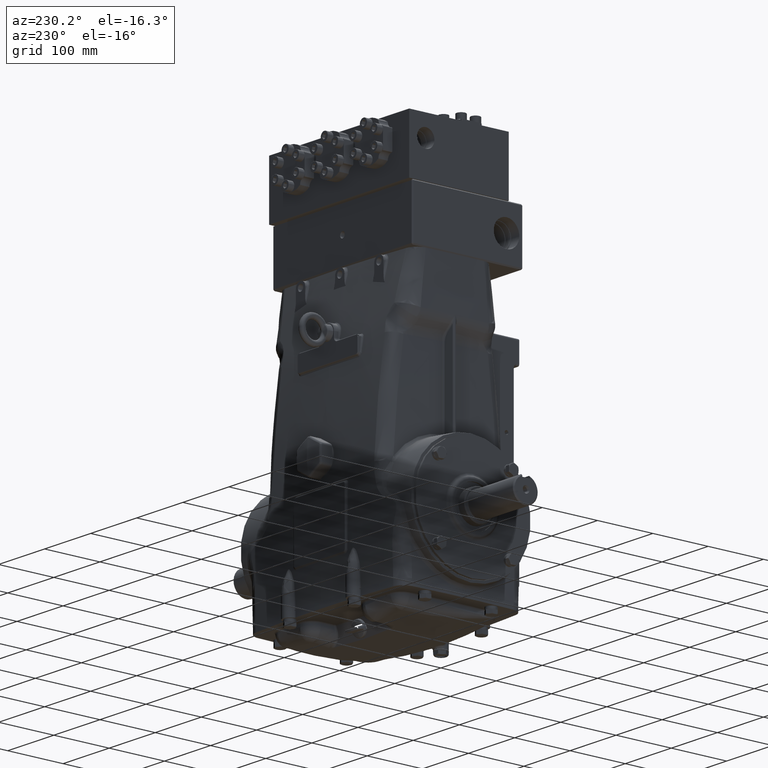
[diagram: clean part render]
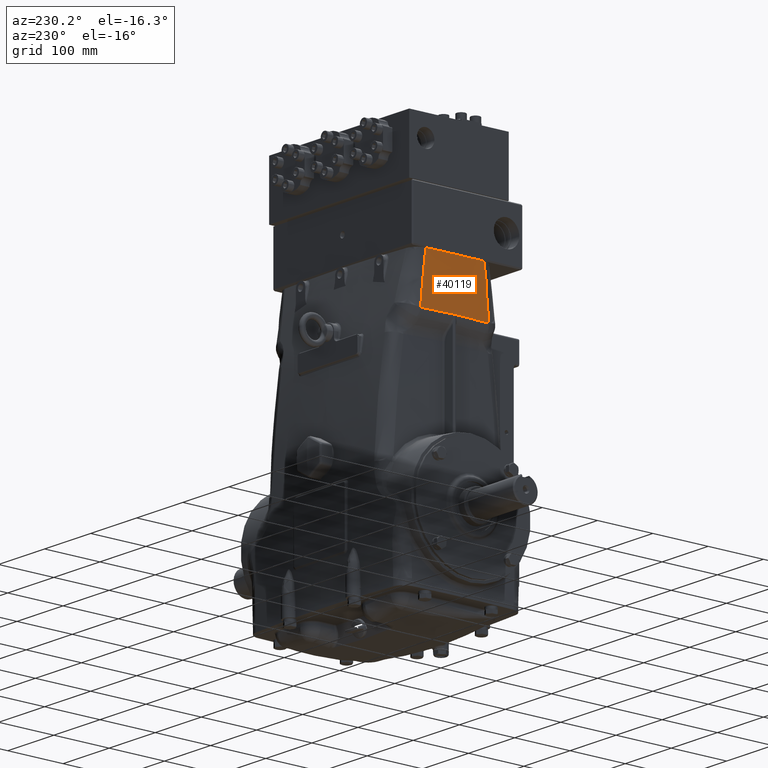
[diagram: same view with one face highlighted and labeled with its STEP entity id]
A machine part, auxiliary view. The second image highlights one B-rep face of the part: STEP entity #40119.
In plain terms, the highlighted cylindrical surface (partial cylindrical patch) has radius 1800 mm, axis along (-0, -0, 1).
Its self-contained STEP definition (entity closure, byte-faithful):
#62 = CARTESIAN_POINT ( 'NONE',  ( -5.914849519459009386, 2.062923769285555764, 14.76377952755905376 ) ) ;
#143 = CARTESIAN_POINT ( 'NONE',  ( -5.907935454055682989, -2.288042336988228787, 12.60076519160816311 ) ) ;
#460 = CARTESIAN_POINT ( 'NONE',  ( -5.905613202200761691, 2.358834284329041076, 11.74368165415275733 ) ) ;
#540 = CARTESIAN_POINT ( 'NONE',  ( -5.912393169960964201, -2.145610620489698750, 14.33355831382751155 ) ) ;
#559 = CARTESIAN_POINT ( 'NONE',  ( -5.914850108854505351, -2.062903530685586961, 14.76377952755905376 ) ) ;
#806 = CARTESIAN_POINT ( 'NONE',  ( -5.905145041411413054, 2.372849602808741132, 11.29664845096411518 ) ) ;
#868 = CARTESIAN_POINT ( 'NONE',  ( -5.908673938971610085, 2.265066120374979342, 13.03264317263259819 ) ) ;
#942 = CARTESIAN_POINT ( 'NONE',  ( -5.908002582631886490, -2.285966615022957171, 12.63956380070080954 ) ) ;
#1267 = CARTESIAN_POINT ( 'NONE',  ( -5.908677572512333498, 2.264952495141791200, 13.03477871201685723 ) ) ;
#1669 = CARTESIAN_POINT ( 'NONE',  ( -5.905672257207958076, 2.357060701444123385, 11.75828390509639831 ) ) ;
#2064 = CARTESIAN_POINT ( 'NONE',  ( -5.907925971269326837, 2.288335852937914972, 12.59596694199654721 ) ) ;
#2120 = CARTESIAN_POINT ( 'NONE',  ( -5.905145041411413054, 2.372849602808741132, 11.29664845096411518 ) ) ;
#3972 = CARTESIAN_POINT ( 'NONE',  ( -5.905528225752234128, -2.361384348573253522, 11.72284042517351743 ) ) ;
#4222 = B_SPLINE_CURVE_WITH_KNOTS ( 'NONE', 3,
 ( #35867, #66393, #73444, #35462 ),
 .UNSPECIFIED., .F., .F.,
 ( 4, 4 ),
 ( 0.000000000000000000, 1.000000000000000000 ),
 .UNSPECIFIED. ) ;
#4790 = CARTESIAN_POINT ( 'NONE',  ( -5.908572489952081064, -2.268236569756057364, 12.97263188438320647 ) ) ;
#5031 = CARTESIAN_POINT ( 'NONE',  ( -5.912946418877834454, 2.127280557214457968, 14.44140605342365902 ) ) ;
#6267 = CARTESIAN_POINT ( 'NONE',  ( -5.912407176762159544, 2.145148159625524631, 14.33655159732869144 ) ) ;
#6344 = CARTESIAN_POINT ( 'NONE',  ( -5.907385859755327928, -2.305001683636797249, 12.32399783327778309 ) ) ;
#6361 = CIRCLE ( 'NONE', #16908, 70.86614173228348079 ) ;
#6672 = CARTESIAN_POINT ( 'NONE',  ( -5.907925995699470967, 2.288335096773560728, 12.59598016377677077 ) ) ;
#6716 = EDGE_CURVE ( 'NONE', #65902, #25584, #4222, .T. ) ;
#6752 = CARTESIAN_POINT ( 'NONE',  ( -5.908673839083826707, -2.265069243921657538, 13.03219826566367345 ) ) ;
#7066 = CARTESIAN_POINT ( 'NONE',  ( -5.908673567012193040, 2.265077751738842515, 13.03242445659455662 ) ) ;
#7146 = CARTESIAN_POINT ( 'NONE',  ( -5.910358512039800338, -2.211763761638367409, 13.80513947154520338 ) ) ;
#7474 = CARTESIAN_POINT ( 'NONE',  ( -5.907932892053354479, 2.288121631570745773, 12.59986493567412857 ) ) ;
#7873 = CARTESIAN_POINT ( 'NONE',  ( -5.907946300177029819, 2.287706566398291397, 12.60754454059181207 ) ) ;
#8272 = CARTESIAN_POINT ( 'NONE',  ( -5.908690296882330273, 2.264554550061988802, 13.04224164656727680 ) ) ;
#8406 =( BOUNDED_CURVE ( )  B_SPLINE_CURVE ( 3, ( #59066, #52867, #16151, #27732 ),
 .UNSPECIFIED., .F., .T. ) 
 B_SPLINE_CURVE_WITH_KNOTS ( ( 4, 4 ),
 ( 6.249695502958979354, 6.283185307179586232 ),
 .UNSPECIFIED. ) 
 CURVE ( )  GEOMETRIC_REPRESENTATION_ITEM ( )  RATIONAL_B_SPLINE_CURVE ( ( 1.000000000000000000, 0.9999065382682942316, 0.9999065382682942316, 1.000000000000000000 ) ) 
 REPRESENTATION_ITEM ( '' )  );
#9340 = B_SPLINE_CURVE_WITH_KNOTS ( 'NONE', 3,
 ( #50362, #63944, #76378, #806 ),
 .UNSPECIFIED., .F., .F.,
 ( 4, 4 ),
 ( 0.000000000000000000, 1.000000000000000000 ),
 .UNSPECIFIED. ) ;
#10987 = CARTESIAN_POINT ( 'NONE',  ( -5.906938846201674309, -2.318688163923551926, 12.14411392551928159 ) ) ;
#11232 = CARTESIAN_POINT ( 'NONE',  ( -5.910719505151603492, 2.200169575731908633, 13.92062736803391942 ) ) ;
#12537 = CARTESIAN_POINT ( 'NONE',  ( -5.907924465698684457, -2.288382453418289941, 12.59476612252230154 ) ) ;
#12859 = CARTESIAN_POINT ( 'NONE',  ( -5.907925908589608532, 2.288337793016503863, 12.59593263261130502 ) ) ;
#12942 = CARTESIAN_POINT ( 'NONE',  ( -5.911320192420449260, -2.180781614502945498, 14.09184732293710773 ) ) ;
#13270 = CARTESIAN_POINT ( 'NONE',  ( -5.907542385340669888, 2.300186964994692662, 12.39651488313214323 ) ) ;
#13347 = CARTESIAN_POINT ( 'NONE',  ( -5.912401270045752000, -2.145343192925556863, 14.33522066649845783 ) ) ;
#13739 = CARTESIAN_POINT ( 'NONE',  ( -5.908660965256409270, -2.265471784821569301, 13.02462738432079981 ) ) ;
#13809 = ORIENTED_EDGE ( 'NONE', *, *, #31128, .T. ) ;
#13833 = CARTESIAN_POINT ( 'NONE',  ( 64.92125984251968873, 0.000000000000000000, 10.03937007874015563 ) ) ;
#13884 = CARTESIAN_POINT ( 'NONE',  ( -5.944881889763780514, -0.7911277460980798981, 11.33801195392740446 ) ) ;
#14066 = CARTESIAN_POINT ( 'NONE',  ( -5.906984198454624746, 2.317302330869617233, 12.16157686259979265 ) ) ;
#14477 = CARTESIAN_POINT ( 'NONE',  ( -5.907926379979780762, 2.288323202396558287, 12.59619183929495279 ) ) ;
#16151 = CARTESIAN_POINT ( 'NONE',  ( -5.944881889763779625, 0.7911347092868183939, 11.33801195392740269 ) ) ;
#16792 = CARTESIAN_POINT ( 'NONE',  ( -5.905546977220835991, -2.360821836220552417, 11.72735800090198133 ) ) ;
#16908 = AXIS2_PLACEMENT_3D ( 'NONE', #26277, #51426, #51823 ) ;
#17031 = CARTESIAN_POINT ( 'NONE',  ( -5.910311584975073806, 2.213292162712717115, 13.79568169888957563 ) ) ;
#17215 = CARTESIAN_POINT ( 'NONE',  ( -5.906982066683062804, -2.317367487503521950, 12.16048425829134949 ) ) ;
#17459 = CARTESIAN_POINT ( 'NONE',  ( -5.912527729218598260, 2.141164361714797071, 14.36090416438256234 ) ) ;
#17628 = CARTESIAN_POINT ( 'NONE',  ( -5.911844968358781927, -2.163643305959773500, 14.21576619181496248 ) ) ;
#17869 = CARTESIAN_POINT ( 'NONE',  ( -5.912074343975505464, 2.156137704011513279, 14.26832902117558888 ) ) ;
#18288 = CARTESIAN_POINT ( 'NONE',  ( -5.910691973858821058, 2.201055658973258833, 13.91227466675942814 ) ) ;
#19085 = CARTESIAN_POINT ( 'NONE',  ( -5.908673636214894387, 2.265075587733624385, 13.03246514808705747 ) ) ;
#19163 = CARTESIAN_POINT ( 'NONE',  ( -5.912385478397920835, -2.145864539222887668, 14.33197820121930910 ) ) ;
#19486 = CARTESIAN_POINT ( 'NONE',  ( -5.904359374784609926, 2.396358114100670456, 11.47133474665070274 ) ) ;
#19564 = CARTESIAN_POINT ( 'NONE',  ( -5.907909924821609593, -2.288832481220072879, 12.58684947114182506 ) ) ;
#19895 = CARTESIAN_POINT ( 'NONE',  ( -5.907928574215944195, 2.288255284748716978, 12.59741784540901932 ) ) ;
#19975 = CARTESIAN_POINT ( 'NONE',  ( -5.906893569967431645, -2.320070968450516080, 12.12721524649918337 ) ) ;
#20282 = CARTESIAN_POINT ( 'NONE',  ( -5.907000699998951276, 2.316797915951817721, 12.16789749022835032 ) ) ;
#20362 = CARTESIAN_POINT ( 'NONE',  ( -5.914850108854505351, -2.062903530685586961, 14.76377952755905376 ) ) ;
#22577 = CARTESIAN_POINT ( 'NONE',  ( -5.905333103806380102, -2.367230992023289904, 11.67729037283493554 ) ) ;
#23393 = CARTESIAN_POINT ( 'NONE',  ( -5.907146162960594360, -2.312351928082398533, 12.22312337869104049 ) ) ;
#23812 = CARTESIAN_POINT ( 'NONE',  ( -5.908673056883660735, -2.265093703616466669, 13.03173823051254843 ) ) ;
#24045 = CARTESIAN_POINT ( 'NONE',  ( -5.910668487044859809, 2.201811330815916623, 13.90510261223999322 ) ) ;
#24446 = CARTESIAN_POINT ( 'NONE',  ( -5.909225665884736856, 2.247756914242586390, 13.33513139633698152 ) ) ;
#24453 = VERTEX_POINT ( 'NONE', #559 ) ;
#24860 = CARTESIAN_POINT ( 'NONE',  ( -5.910887622280017517, 2.194752194930855271, 13.97041162654521962 ) ) ;
#25276 = CARTESIAN_POINT ( 'NONE',  ( -5.913229139133507672, 2.117843687238893935, 14.49218836720061887 ) ) ;
#25353 = CARTESIAN_POINT ( 'NONE',  ( -5.908672357009643328, -2.265115588781693390, 13.03132661716527174 ) ) ;
#25584 = VERTEX_POINT ( 'NONE', #48118 ) ;
#25676 = CARTESIAN_POINT ( 'NONE',  ( -5.906448200662091530, 2.333647360579240715, 11.97100916173336671 ) ) ;
#25757 = CARTESIAN_POINT ( 'NONE',  ( -5.910588093824340916, -2.204396247899172323, 13.87997393401313140 ) ) ;
#25846 = DIRECTION ( 'NONE',  ( 1.000000000000000000, 0.000000000000000000, 0.000000000000000000 ) ) ;
#26081 = CARTESIAN_POINT ( 'NONE',  ( -5.907124578004150806, 2.313008229074265287, 12.21653243246279352 ) ) ;
#26158 = CARTESIAN_POINT ( 'NONE',  ( -5.910664206654299591, -2.201949026004639265, 13.90360742140967787 ) ) ;
#26277 = CARTESIAN_POINT ( 'NONE',  ( 64.92125984251968873, 0.000000000000000000, 14.76377952755905376 ) ) ;
#26425 = ORIENTED_EDGE ( 'NONE', *, *, #75958, .T. ) ;
#27732 = CARTESIAN_POINT ( 'NONE',  ( -5.944881889763789395, 0.000000000000000000, 11.33801195392741334 ) ) ;
#29587 = CARTESIAN_POINT ( 'NONE',  ( -5.907859966048493838, -2.290378084995074115, 12.55991400771519473 ) ) ;
#30008 = CARTESIAN_POINT ( 'NONE',  ( -5.908648036470469656, -2.265875982219262230, 13.01702548429508077 ) ) ;
#30255 = CARTESIAN_POINT ( 'NONE',  ( -5.911119552194555204, 2.187260002439114004, 14.03590544019855457 ) ) ;
#30630 = CARTESIAN_POINT ( 'NONE',  ( -5.903375805935151099, 2.425076266536521086, 11.30089893811133983 ) ) ;
#31062 = CARTESIAN_POINT ( 'NONE',  ( -5.910666534261126870, 2.201874150668091890, 13.90450443823717919 ) ) ;
#31128 = EDGE_CURVE ( 'NONE', #36854, #78684, #56844, .T. ) ;
#31465 = CARTESIAN_POINT ( 'NONE',  ( -5.911609795965371283, 2.171353261600236007, 14.16385810397932410 ) ) ;
#31545 = CARTESIAN_POINT ( 'NONE',  ( -5.907925948688254714, -2.288336551877323544, 12.59557548183328102 ) ) ;
#31876 = CARTESIAN_POINT ( 'NONE',  ( -5.906991816552033647, 2.317069474539982465, 12.16449026980165726 ) ) ;
#31906 = ORIENTED_EDGE ( 'NONE', *, *, #69898, .T. ) ;
#31952 = CARTESIAN_POINT ( 'NONE',  ( -5.910511285549894467, -2.206863464533414199, 13.85553525853279133 ) ) ;
#32146 = CARTESIAN_POINT ( 'NONE',  ( -5.914849519459009386, 2.062923769285555764, 14.76377952755905376 ) ) ;
#32269 = CARTESIAN_POINT ( 'NONE',  ( -5.906016381522832148, 2.346702566661738487, 11.84755615944344953 ) ) ;
#32347 = CARTESIAN_POINT ( 'NONE',  ( -5.910645883728444794, -2.202538368117034739, 13.89797078274249387 ) ) ;
#32669 = CARTESIAN_POINT ( 'NONE',  ( -5.907926101290532195, 2.288331828485016040, 12.59603828090800448 ) ) ;
#32849 = DIRECTION ( 'NONE',  ( -0.000000000000000000, -0.000000000000000000, 1.000000000000000000 ) ) ;
#33080 = CARTESIAN_POINT ( 'NONE',  ( -5.905557928655715827, 2.360493260507960933, 11.73019312247536305 ) ) ;
#33474 = CARTESIAN_POINT ( 'NONE',  ( -5.907925864761807588, 2.288339149584246890, 12.59590867641229117 ) ) ;
#35462 = CARTESIAN_POINT ( 'NONE',  ( -5.903376586306757545, -2.425053475419854276, 11.30089932007131459 ) ) ;
#35867 = CARTESIAN_POINT ( 'NONE',  ( -5.905145740766999829, -2.372828727882712929, 11.29664917894829834 ) ) ;
#36178 = CARTESIAN_POINT ( 'NONE',  ( -5.907926533142209280, -2.288318461630884482, 12.59589455035079375 ) ) ;
#36854 = VERTEX_POINT ( 'NONE', #32146 ) ;
#37249 = CARTESIAN_POINT ( 'NONE',  ( -5.912405410717039622, 2.145206474836610866, 14.33619000024514634 ) ) ;
#37643 = CARTESIAN_POINT ( 'NONE',  ( -5.912433373583989571, 2.144282988386367883, 14.34189929391718721 ) ) ;
#37724 = CARTESIAN_POINT ( 'NONE',  ( -5.912367555594764568, -2.146456113003074595, 14.32828832679644826 ) ) ;
#37818 = EDGE_CURVE ( 'NONE', #24453, #36854, #6361, .T. ) ;
#38057 = CARTESIAN_POINT ( 'NONE',  ( -5.907018452873892933, 2.316255145442352337, 12.17473861268919322 ) ) ;
#38135 = CARTESIAN_POINT ( 'NONE',  ( -5.912260696901864065, -2.149980264331264657, 14.30606662015562591 ) ) ;
#38451 = CARTESIAN_POINT ( 'NONE',  ( -5.905078663283149787, 2.374872883555778191, 11.61408808050660291 ) ) ;
#38522 = CARTESIAN_POINT ( 'NONE',  ( -5.906210724278896151, -2.340843054100693710, 11.89896932830630938 ) ) ;
#38839 = CARTESIAN_POINT ( 'NONE',  ( -5.905583491758536141, 2.359726135792812762, 11.73641014919317271 ) ) ;
#38921 = CARTESIAN_POINT ( 'NONE',  ( -5.906972499305956248, -2.317659890735875194, 12.15684003220991016 ) ) ;
#39242 = CARTESIAN_POINT ( 'NONE',  ( -5.905788906318869103, 2.353554015934743227, 11.78772537108157081 ) ) ;
#39650 = CARTESIAN_POINT ( 'NONE',  ( -5.907774054123752450, 2.293038025342771569, 12.51302298081366082 ) ) ;
#40119 = ADVANCED_FACE ( 'NONE', ( #56776 ), #50581, .T. ) ;
#40733 = CARTESIAN_POINT ( 'NONE',  ( -5.903868404421727334, -2.410696825058905368, 11.38610251722253608 ) ) ;
#41945 = CARTESIAN_POINT ( 'NONE',  ( -5.905550704305387200, -2.360710017635931912, 11.72825889983235648 ) ) ;
#42031 = AXIS2_PLACEMENT_3D ( 'NONE', #13833, #32849, #25846 ) ;
#42365 = CARTESIAN_POINT ( 'NONE',  ( -5.907922389271537789, -2.288446721722634525, 12.59363350021778238 ) ) ;
#42592 = CARTESIAN_POINT ( 'NONE',  ( -5.912464364493356328, 2.143259104953934013, 14.34818444621476452 ) ) ;
#42775 = CARTESIAN_POINT ( 'NONE',  ( -5.910626602959386133, -2.203158372550598543, 13.89200346724993373 ) ) ;
#43014 = CARTESIAN_POINT ( 'NONE',  ( -5.910678260647441284, 2.201496899145066966, 13.90809238845904972 ) ) ;
#43065 = CARTESIAN_POINT ( 'NONE',  ( -5.944881889763789395, 0.000000000000000000, 11.33801195392741334 ) ) ;
#44225 = CARTESIAN_POINT ( 'NONE',  ( -5.908809579912570165, 2.260821146657628233, 13.11103706078430342 ) ) ;
#44304 = CARTESIAN_POINT ( 'NONE',  ( -5.909465837348431450, -2.240209742213045807, 13.46024854086546263 ) ) ;
#44712 = CARTESIAN_POINT ( 'NONE',  ( -5.908622468202515243, -2.266675148888330771, 13.00199565570684790 ) ) ;
#45070 = ORIENTED_EDGE ( 'NONE', *, *, #6716, .T. ) ;
#45109 = CARTESIAN_POINT ( 'NONE',  ( -5.906978082837019528, -2.317489247722475554, 12.15896539144380561 ) ) ;
#45427 = CARTESIAN_POINT ( 'NONE',  ( -5.907927011945045770, 2.288303641488663498, 12.59654247832490093 ) ) ;
#45830 = CARTESIAN_POINT ( 'NONE',  ( -5.908681812763847851, 2.264819891135029462, 13.03726833530383367 ) ) ;
#47723 = CARTESIAN_POINT ( 'NONE',  ( -5.905447124792739366, -2.363815928739164018, 11.70360253815453433 ) ) ;
#48118 = CARTESIAN_POINT ( 'NONE',  ( -5.903376586306757545, -2.425053475419854276, 11.30089932007131459 ) ) ;
#48133 = CARTESIAN_POINT ( 'NONE',  ( -5.903376586306757545, -2.425053475419854276, 11.30089932007131459 ) ) ;
#48547 = CARTESIAN_POINT ( 'NONE',  ( -5.906801625286711044, -2.322876944094643292, 12.09365604811865680 ) ) ;
#48963 = CARTESIAN_POINT ( 'NONE',  ( -5.910655530657336065, -2.202228099210286949, 13.90094257770731190 ) ) ;
#49557 = EDGE_CURVE ( 'NONE', #57898, #65902, #81598, .T. ) ;
#49603 = CARTESIAN_POINT ( 'NONE',  ( -5.914316301299402667, 2.081233267886914540, 14.67785554985681529 ) ) ;
#50362 = CARTESIAN_POINT ( 'NONE',  ( -5.903375805935151099, 2.425076266536521086, 11.30089893811133983 ) ) ;
#50420 = CARTESIAN_POINT ( 'NONE',  ( -5.907925882226328085, 2.288338609018522263, 12.59591822003274331 ) ) ;
#50494 = CARTESIAN_POINT ( 'NONE',  ( -5.910056361448352114, -2.221427811899505222, 13.69827415346227184 ) ) ;
#50581 = CYLINDRICAL_SURFACE ( 'NONE', #42031, 70.86614173228348079 ) ;
#50819 = CARTESIAN_POINT ( 'NONE',  ( -5.905555514685309149, 2.360565690588433352, 11.72960788464305715 ) ) ;
#50901 = CARTESIAN_POINT ( 'NONE',  ( -5.912398299971339810, -2.145441255309102679, 14.33461144175644542 ) ) ;
#51040 = CARTESIAN_POINT ( 'NONE',  ( -5.905145740766999829, -2.372828727882712929, 11.29664917894829834 ) ) ;
#51302 = CARTESIAN_POINT ( 'NONE',  ( -5.908673523573869879, -2.265079110073227486, 13.03201270413225998 ) ) ;
#51426 = DIRECTION ( 'NONE',  ( -0.000000000000000000, -0.000000000000000000, -1.000000000000000000 ) ) ;
#51629 = CARTESIAN_POINT ( 'NONE',  ( -5.907992197049621197, 2.286285400491313347, 12.63404544797705498 ) ) ;
#51823 = DIRECTION ( 'NONE',  ( 1.000000000000000000, 0.000000000000000000, 0.000000000000000000 ) ) ;
#52017 = CARTESIAN_POINT ( 'NONE',  ( -5.907053902575530202, 2.315170991092177388, 12.18852758404067060 ) ) ;
#52236 = CARTESIAN_POINT ( 'NONE',  ( -5.944881889763789395, 0.000000000000000000, 11.33801195392741334 ) ) ;
#52867 = CARTESIAN_POINT ( 'NONE',  ( -5.931635035572393910, 1.582158507343740528, 11.32422283085098513 ) ) ;
#53304 = CARTESIAN_POINT ( 'NONE',  ( -5.912957260764703626, -2.126985211393721098, 14.44919566182865189 ) ) ;
#54718 = CARTESIAN_POINT ( 'NONE',  ( -5.908477174946255239, -2.271211761875668866, 12.91668788514720312 ) ) ;
#55135 = CARTESIAN_POINT ( 'NONE',  ( -5.908667465795435447, -2.265268532606619090, 13.02845008076655553 ) ) ;
#55686 = VERTEX_POINT ( 'NONE', #2120 ) ;
#56678 = CARTESIAN_POINT ( 'NONE',  ( -5.907658511919636979, -2.296601552537814950, 12.45538260004322417 ) ) ;
#56776 = FACE_OUTER_BOUND ( 'NONE', #76622, .T. ) ;
#56844 = B_SPLINE_CURVE_WITH_KNOTS ( 'NONE', 3,
 ( #62, #49603, #61581, #25276, #5031, #74009, #17459, #42592, #37643, #68606, #62808, #6267, #37249, #17869, #31465, #30255, #24860, #67765, #11232, #18288, #43014, #81020, #24045, #31062, #68185, #17031, #62005, #24446, #63605, #44225, #70612, #75635, #8272, #45830, #1267, #58618, #71021, #868, #19085, #7066, #69408, #64822, #69815, #51629, #7873, #7474, #19895, #45427, #14477, #32669, #2064, #12859, #50420, #33474, #6672, #39650, #13270, #76835, #26081, #52017, #38057, #20282, #31876, #63218, #58211, #14066, #57008, #57808, #25676, #32269, #39242, #1669, #460, #38839, #64410, #76043, #33080, #50819, #38451, #19486, #57406 ),
 .UNSPECIFIED., .F., .F.,
 ( 4, 2, 1, 1, 1, 1, 1, 1, 2, 2, 1, 1, 1, 1, 1, 1, 1, 1, 2, 2, 1, 1, 1, 1, 1, 1, 1, 1, 1, 1, 1, 2, 2, 2, 1, 1, 1, 1, 1, 1, 1, 1, 1, 2, 2, 1, 1, 1, 1, 1, 1, 1, 1, 2, 2, 1, 1, 1, 1, 1, 1, 1, 2, 2, 4 ),
 ( 0.000000000000000000, 0.06250000000417306467, 0.09375000000626051988, 0.1093750000073052536, 0.1171875000078276413, 0.1210937500080877111, 0.1230468750082188978, 0.1240234375082833046, 0.1245117187583155011, 0.1250000000083477114, 0.1875000000124950605, 0.2187500000145687351, 0.2343750000156064606, 0.2421875000161244351, 0.2460937500163843106, 0.2480468750165142622, 0.2490234375165783498, 0.2495117187666103797, 0.2497558593916264225, 0.2500000000166424097, 0.3750000000251201837, 0.4375000000293599589, 0.4687500000314789861, 0.4843750000325385274, 0.4921875000330675487, 0.4960937500333313377, 0.4980468750334631767, 0.4990234375335290684, 0.4995117187835613204, 0.4997558594085774186, 0.4998779297210862449, 0.4999389648773399641, 0.5000000000335935724, 0.5625000000370895537, 0.5937500000388373778, 0.6093750000397131217, 0.6171875000401509936, 0.6210937500403699296, 0.6230468750404793976, 0.6240234375405242506, 0.6245117187905466771, 0.6247558594155705469, 0.6248779297280825373, 0.6249389648843248768, 0.6250000000405671052, 0.6875000000336500827, 0.7187500000301906278, 0.7343750000284609003, 0.7421875000275949263, 0.7460937500271619394, 0.7480468750269454459, 0.7490234375268360889, 0.7495117187767814659, 0.7497558594017541544, 0.7500000000267267319, 0.8125000000201291206, 0.8437500000168303149, 0.8593750000151799684, 0.8671875000143547396, 0.8710937500139421807, 0.8730468750137347911, 0.8740234375136310963, 0.8745117187635792488, 0.8750000000135274014, 1.000000000000000000 ),
 .UNSPECIFIED. ) ;
#57008 = CARTESIAN_POINT ( 'NONE',  ( -5.906983724185893792, 2.317316826873552227, 12.16139571799301500 ) ) ;
#57009 = EDGE_CURVE ( 'NONE', #55686, #57898, #8406, .T. ) ;
#57086 = CARTESIAN_POINT ( 'NONE',  ( -5.912331806775213749, -2.147635647510576007, 14.32089679793592296 ) ) ;
#57221 = CARTESIAN_POINT ( 'NONE',  ( -5.931635268734507527, -1.582144583894554923, 11.32422307355774826 ) ) ;
#57406 = CARTESIAN_POINT ( 'NONE',  ( -5.903375805935151099, 2.425076266536521086, 11.30089893811133983 ) ) ;
#57486 = CARTESIAN_POINT ( 'NONE',  ( -5.907893289852319541, -2.289347226339031316, 12.57783531171034141 ) ) ;
#57808 = CARTESIAN_POINT ( 'NONE',  ( -5.906779215138526773, 2.323567532111388001, 12.08332560752385731 ) ) ;
#57898 = VERTEX_POINT ( 'NONE', #43065 ) ;
#58211 = CARTESIAN_POINT ( 'NONE',  ( -5.906985468353179058, 2.317263516150661840, 12.16206202018411453 ) ) ;
#58618 = CARTESIAN_POINT ( 'NONE',  ( -5.908675452838605402, 2.265018780512672247, 13.03353315845955862 ) ) ;
#59066 = CARTESIAN_POINT ( 'NONE',  ( -5.905145041411413054, 2.372849602808741132, 11.29664845096411518 ) ) ;
#59214 = ORIENTED_EDGE ( 'NONE', *, *, #57009, .T. ) ;
#59697 = CARTESIAN_POINT ( 'NONE',  ( -5.904293807899241742, -2.398147131624760231, 11.46439270431054247 ) ) ;
#60523 = CARTESIAN_POINT ( 'NONE',  ( -5.904836973050063165, -2.382033327837833170, 11.57145764498315543 ) ) ;
#61343 = CARTESIAN_POINT ( 'NONE',  ( -5.906612150607194245, -2.328650361194879448, 12.02749028999629211 ) ) ;
#61581 = CARTESIAN_POINT ( 'NONE',  ( -5.913842805634069499, 2.097251884575155323, 14.59921726255442209 ) ) ;
#62005 = CARTESIAN_POINT ( 'NONE',  ( -5.909797359077495926, 2.229702078746513383, 13.60556097325805069 ) ) ;
#62808 = CARTESIAN_POINT ( 'NONE',  ( -5.912411521591919517, 2.145004686772696623, 14.33744058256331222 ) ) ;
#62885 = CARTESIAN_POINT ( 'NONE',  ( -5.907926245270652466, -2.288327371963689849, 12.59573738454983882 ) ) ;
#63218 = CARTESIAN_POINT ( 'NONE',  ( -5.906987373075787140, 2.317205297167524325, 12.16278999478924128 ) ) ;
#63294 = CARTESIAN_POINT ( 'NONE',  ( -5.906983024356325274, -2.317338216854290867, 12.16084968098479635 ) ) ;
#63605 = CARTESIAN_POINT ( 'NONE',  ( -5.908947054855834935, 2.256511820642408406, 13.18776109195536606 ) ) ;
#63685 = CARTESIAN_POINT ( 'NONE',  ( -5.908189887958601894, -2.280153209043882967, 12.74866079386039353 ) ) ;
#63944 = CARTESIAN_POINT ( 'NONE',  ( -5.903959515862932328, 2.408036040008168843, 11.29745660387063744 ) ) ;
#64082 = CARTESIAN_POINT ( 'NONE',  ( -5.912120033135460417, -2.154611689339591685, 14.27621778435805311 ) ) ;
#64335 = CARTESIAN_POINT ( 'NONE',  ( -5.905145740766999829, -2.372828727882712929, 11.29664917894829834 ) ) ;
#64410 = CARTESIAN_POINT ( 'NONE',  ( -5.905568590761821390, 2.360173326528731685, 11.73278180184143693 ) ) ;
#64534 = ORIENTED_EDGE ( 'NONE', *, *, #49557, .T. ) ;
#64571 = ORIENTED_EDGE ( 'NONE', *, *, #37818, .T. ) ;
#64822 = CARTESIAN_POINT ( 'NONE',  ( -5.908251518864884311, 2.278240409770262431, 12.78495753448111749 ) ) ;
#65902 = VERTEX_POINT ( 'NONE', #64335 ) ;
#66393 = CARTESIAN_POINT ( 'NONE',  ( -5.904550180776596768, -2.390605558099901717, 11.29604071551443845 ) ) ;
#66709 = CARTESIAN_POINT ( 'NONE',  ( -5.905501611925175531, -2.362182521245813849, 11.71647505683106516 ) ) ;
#67126 = CARTESIAN_POINT ( 'NONE',  ( -5.905552285682732716, -2.360662572354068178, 11.72864148323970568 ) ) ;
#67528 = CARTESIAN_POINT ( 'NONE',  ( -5.907925503807152090, -2.288350321938684040, 12.59533264268797126 ) ) ;
#67765 = CARTESIAN_POINT ( 'NONE',  ( -5.910774986753275506, 2.198382997643469228, 13.93728534927780416 ) ) ;
#68185 = CARTESIAN_POINT ( 'NONE',  ( -5.910665271862801440, 2.201914760178965036, 13.90411753428069375 ) ) ;
#68606 = CARTESIAN_POINT ( 'NONE',  ( -5.912418051211069780, 2.144789058062345877, 14.33877539446498872 ) ) ;
#69078 = CARTESIAN_POINT ( 'NONE',  ( -5.906961310545741028, -2.318001807492295896, 12.15259303498678811 ) ) ;
#69408 = CARTESIAN_POINT ( 'NONE',  ( -5.908434182414926461, 2.272563384559500133, 12.89164449754916575 ) ) ;
#69484 = CARTESIAN_POINT ( 'NONE',  ( -5.910914856849399435, -2.193886037905765640, 13.98046140597031517 ) ) ;
#69815 = CARTESIAN_POINT ( 'NONE',  ( -5.908064203824373806, 2.284054053072834378, 12.67586056439279041 ) ) ;
#69892 = CARTESIAN_POINT ( 'NONE',  ( -5.910660355757156204, -2.202072898084340480, 13.90242550949435518 ) ) ;
#69898 = EDGE_CURVE ( 'NONE', #78684, #55686, #9340, .T. ) ;
#70292 = CARTESIAN_POINT ( 'NONE',  ( -5.907918235576282484, -2.288575279713105814, 12.59136992771605357 ) ) ;
#70612 = CARTESIAN_POINT ( 'NONE',  ( -5.908741302749783486, 2.262958777949713784, 13.07191532545369661 ) ) ;
#71021 = CARTESIAN_POINT ( 'NONE',  ( -5.908674393114756285, 2.265051919040012240, 13.03291019620245450 ) ) ;
#73347 = CARTESIAN_POINT ( 'NONE',  ( -5.905541375365363166, -2.360989895010109141, 11.72600538659578895 ) ) ;
#73444 = CARTESIAN_POINT ( 'NONE',  ( -5.903960270934229371, -2.408013827566592546, 11.29745724495016468 ) ) ;
#73767 = CARTESIAN_POINT ( 'NONE',  ( -5.907793102774810734, -2.292445275973542085, 12.52449945919616781 ) ) ;
#74009 = CARTESIAN_POINT ( 'NONE',  ( -5.912659975979523530, 2.136786969310013440, 14.38694125500877874 ) ) ;
#74172 = CARTESIAN_POINT ( 'NONE',  ( -5.910663802918763032, -2.201962013150760900, 13.90348354608459580 ) ) ;
#75635 = CARTESIAN_POINT ( 'NONE',  ( -5.908707279576093541, 2.264023335676851545, 13.05216452785212589 ) ) ;
#75714 = CARTESIAN_POINT ( 'NONE',  ( -5.910662424007406379, -2.202006369029120503, 13.90306041618265098 ) ) ;
#75958 = EDGE_CURVE ( 'NONE', #25584, #24453, #81520, .T. ) ;
#76043 = CARTESIAN_POINT ( 'NONE',  ( -5.905562194806917020, 2.360365250773306389, 11.73122838264670875 ) ) ;
#76120 = CARTESIAN_POINT ( 'NONE',  ( -5.908983937900786465, -2.255372266826038974, 13.21457805618659087 ) ) ;
#76378 = CARTESIAN_POINT ( 'NONE',  ( -5.904549452860863745, 2.390627128942514723, 11.29603995860295029 ) ) ;
#76516 = CARTESIAN_POINT ( 'NONE',  ( -5.908305174442163299, -2.276571549674029526, 12.81593406032033577 ) ) ;
#76622 = EDGE_LOOP ( 'NONE', ( #64571, #13809, #31906, #59214, #64534, #45070, #26425 ) ) ;
#76835 = CARTESIAN_POINT ( 'NONE',  ( -5.907265034704678008, 2.308704891830010375, 12.27424975218368886 ) ) ;
#77921 = CARTESIAN_POINT ( 'NONE',  ( -5.905827633517976238, -2.352401104028594148, 11.79534088323732277 ) ) ;
#78129 = CARTESIAN_POINT ( 'NONE',  ( -5.913783481561727839, -2.099529445113942572, 14.59190078789779577 ) ) ;
#78684 = VERTEX_POINT ( 'NONE', #30630 ) ;
#79149 = CARTESIAN_POINT ( 'NONE',  ( -5.905084801157298280, -2.374654109298677263, 11.62239753032961787 ) ) ;
#79963 = CARTESIAN_POINT ( 'NONE',  ( -5.906980473454533254, -2.317416182580672057, 12.15987665839169374 ) ) ;
#80375 = CARTESIAN_POINT ( 'NONE',  ( -5.908670725099357313, -2.265166618119822228, 13.03036686559766366 ) ) ;
#81020 = CARTESIAN_POINT ( 'NONE',  ( -5.910671417157693952, 2.201717068868905613, 13.90599976739307664 ) ) ;
#81520 = B_SPLINE_CURVE_WITH_KNOTS ( 'NONE', 3,
 ( #48133, #40733, #59697, #60523, #79149, #22577, #47723, #66709, #3972, #73347, #16792, #41945, #67126, #77921, #38522, #61343, #48547, #19975, #10987, #69078, #38921, #45109, #79963, #17215, #63294, #23393, #6344, #56678, #73767, #29587, #57486, #19564, #70292, #42365, #12537, #67528, #31545, #62885, #36178, #143, #942, #63685, #76516, #54718, #4790, #44712, #30008, #13739, #55135, #80375, #25353, #23812, #51302, #6752, #76120, #44304, #50494, #7146, #31952, #25757, #42775, #32347, #48963, #69892, #75714, #74172, #26158, #69484, #12942, #17628, #64082, #38135, #57086, #37724, #19163, #540, #50901, #13347, #53304, #78129, #20362 ),
 .UNSPECIFIED., .F., .F.,
 ( 4, 2, 1, 1, 1, 1, 1, 1, 2, 2, 1, 1, 1, 1, 1, 1, 1, 1, 2, 2, 1, 1, 1, 1, 1, 1, 1, 1, 1, 1, 2, 2, 2, 1, 1, 1, 1, 1, 1, 1, 1, 1, 2, 2, 1, 1, 1, 1, 1, 1, 1, 1, 1, 2, 2, 1, 1, 1, 1, 1, 1, 1, 2, 2, 4 ),
 ( 0.000000000000000000, 0.06249999999974054088, 0.09374999999961081132, 0.1093749999995448918, 0.1171874999995119321, 0.1210937499994966110, 0.1230468749994889366, 0.1240234374994839683, 0.1245117187494826222, 0.1249999999994812760, 0.1874999999991568966, 0.2187499999989946931, 0.2343749999989145072, 0.2421874999988735400, 0.2460937499988530286, 0.2480468749988427868, 0.2490234374988367916, 0.2495117187488337940, 0.2497558593738314348, 0.2499999999988290478, 0.3124999999979255483, 0.3437499999974728548, 0.3593749999972456477, 0.3671874999971328490, 0.3710937499970773379, 0.3730468749970504150, 0.3740234374970369258, 0.3745117187470302089, 0.3747558593720268227, 0.3748779296845251574, 0.3749389648407735476, 0.3749999999970218822, 0.4374999999959829355, 0.4687499999954634622, 0.4843749999952043916, 0.4921874999950742735, 0.4960937499950092144, 0.4980468749949771845, 0.4990234374949611973, 0.4995117187449537033, 0.4997558593699499285, 0.4998779296824485407, 0.4999389648386983742, 0.4999999999949481522, 0.6249999999963756769, 0.6874999999970894393, 0.7187499999974473752, 0.7343749999976263432, 0.7421874999977146059, 0.7460937499977587928, 0.7480468749977808862, 0.7490234374977919884, 0.7495117187477986498, 0.7497558593728007592, 0.7499999999978028686, 0.8124999999982414067, 0.8437499999984596766, 0.8593749999985688115, 0.8671874999986243227, 0.8710937499986530774, 0.8730468749986665111, 0.8740234374986742827, 0.8745117187486790566, 0.8749999999986839416, 1.000000000000000000 ),
 .UNSPECIFIED. ) ;
#81598 =( BOUNDED_CURVE ( )  B_SPLINE_CURVE ( 3, ( #52236, #13884, #57221, #51040 ),
 .UNSPECIFIED., .F., .T. ) 
 B_SPLINE_CURVE_WITH_KNOTS ( ( 4, 4 ),
 ( 0.000000000000000000, 0.03348950948694121021 ),
 .UNSPECIFIED. ) 
 CURVE ( )  GEOMETRIC_REPRESENTATION_ITEM ( )  RATIONAL_B_SPLINE_CURVE ( ( 1.000000000000000000, 0.9999065399133055809, 0.9999065399133055809, 1.000000000000000000 ) ) 
 REPRESENTATION_ITEM ( '' )  );